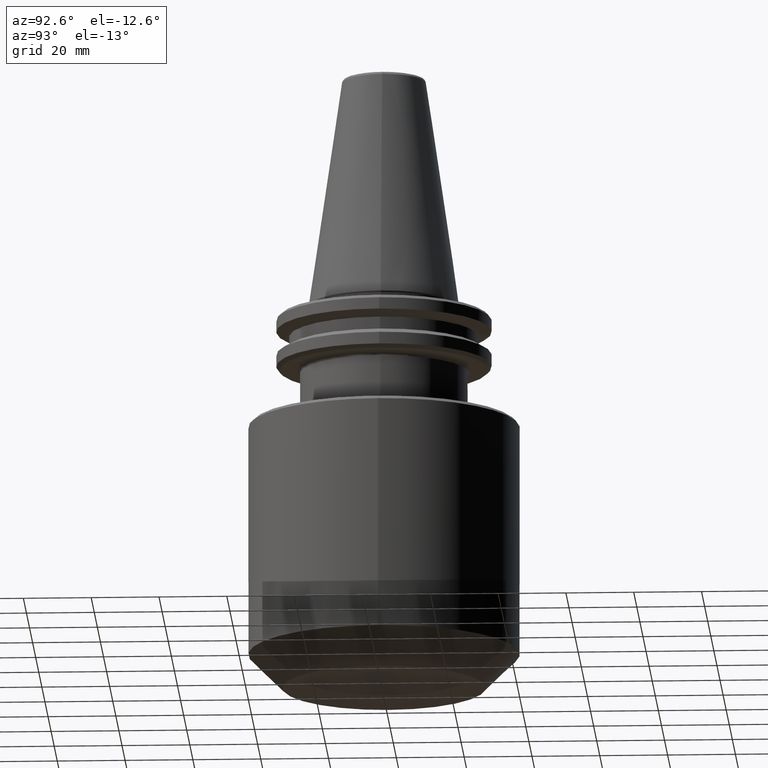
[diagram: clean part render]
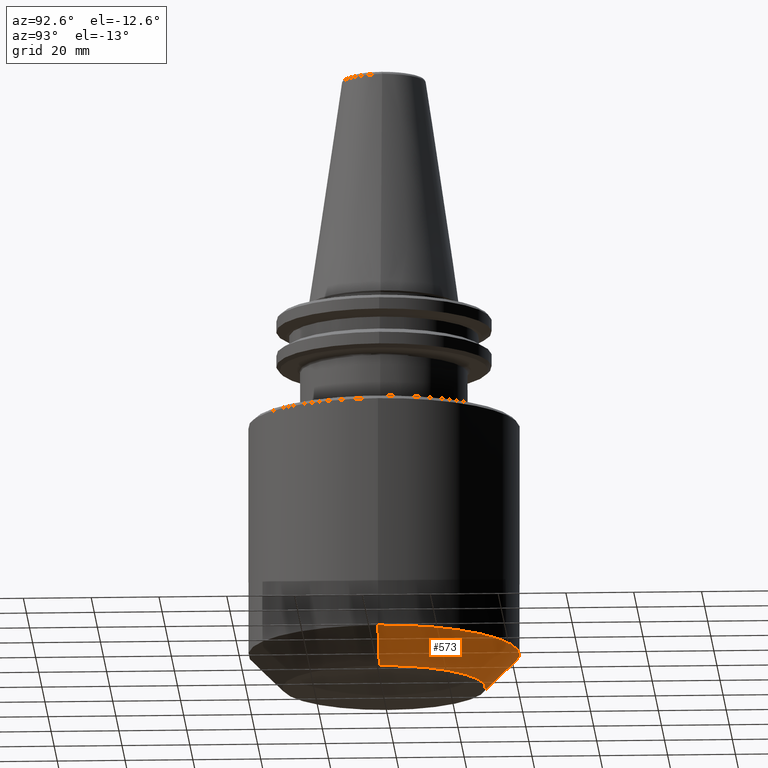
[diagram: same view with one face highlighted and labeled with its STEP entity id]
A machine part, auxiliary view. The second image highlights one B-rep face of the part: STEP entity #573.
In plain terms, the highlighted conical surface has half-angle 45 deg.
Its self-contained STEP definition (entity closure, byte-faithful):
#69 = CIRCLE ( 'NONE', #1209, 30.00000000000000000 ) ;
#96 = VERTEX_POINT ( 'NONE', #1008 ) ;
#121 = LINE ( 'NONE', #1268, #1273 ) ;
#229 = EDGE_CURVE ( 'NONE', #624, #96, #69, .T. ) ;
#435 = EDGE_CURVE ( 'NONE', #729, #631, #1249, .T. ) ;
#449 = CARTESIAN_POINT ( 'NONE',  ( 39.99999999999998600, 0.0000000000000000000, -104.9999999999999600 ) ) ;
#492 = CARTESIAN_POINT ( 'NONE',  ( 30.00000000000000000, 0.0000000000000000000, -115.0000000000000100 ) ) ;
#506 = CARTESIAN_POINT ( 'NONE',  ( -39.99999999999998600, 4.898587196589411400E-015, -104.9999999999999600 ) ) ;
#534 = DIRECTION ( 'NONE',  ( 1.000000000000000000, 0.0000000000000000000, 0.0000000000000000000 ) ) ;
#535 = CARTESIAN_POINT ( 'NONE',  ( 0.0000000000000000000, 0.0000000000000000000, -104.9999999999999600 ) ) ;
#546 = DIRECTION ( 'NONE',  ( 0.7071067811865448000, 0.0000000000000000000, 0.7071067811865502400 ) ) ;
#550 = DIRECTION ( 'NONE',  ( 0.0000000000000000000, -0.0000000000000000000, 1.000000000000000000 ) ) ;
#573 = ADVANCED_FACE ( 'NONE', ( #615 ), #1832, .T. ) ;
#593 = AXIS2_PLACEMENT_3D ( 'NONE', #535, #550, #534 ) ;
#615 = FACE_OUTER_BOUND ( 'NONE', #660, .T. ) ;
#619 = DIRECTION ( 'NONE',  ( 1.000000000000000000, 0.0000000000000000000, 0.0000000000000000000 ) ) ;
#620 = DIRECTION ( 'NONE',  ( 0.0000000000000000000, 0.0000000000000000000, 1.000000000000000000 ) ) ;
#622 = CARTESIAN_POINT ( 'NONE',  ( 0.0000000000000000000, 0.0000000000000000000, -104.9999999999999600 ) ) ;
#624 = VERTEX_POINT ( 'NONE', #492 ) ;
#631 = VERTEX_POINT ( 'NONE', #506 ) ;
#660 = EDGE_LOOP ( 'NONE', ( #1063, #1488, #1606, #1689 ) ) ;
#729 = VERTEX_POINT ( 'NONE', #449 ) ;
#939 = CARTESIAN_POINT ( 'NONE',  ( -39.99999999999998600, 4.898587196589411400E-015, -104.9999999999999600 ) ) ;
#1008 = CARTESIAN_POINT ( 'NONE',  ( -30.00000000000000000, 4.286263797015734900E-015, -115.0000000000000100 ) ) ;
#1063 = ORIENTED_EDGE ( 'NONE', *, *, #229, .T. ) ;
#1209 = AXIS2_PLACEMENT_3D ( 'NONE', #1698, #1433, #1312 ) ;
#1230 = AXIS2_PLACEMENT_3D ( 'NONE', #622, #620, #619 ) ;
#1249 = CIRCLE ( 'NONE', #1230, 39.99999999999999300 ) ;
#1268 = CARTESIAN_POINT ( 'NONE',  ( 39.99999999999998600, 0.0000000000000000000, -104.9999999999999600 ) ) ;
#1273 = VECTOR ( 'NONE', #546, 1000.000000000000000 ) ;
#1287 = DIRECTION ( 'NONE',  ( -0.7071067811865448000, 8.659560562354899600E-017, 0.7071067811865502400 ) ) ;
#1312 = DIRECTION ( 'NONE',  ( 1.000000000000000000, 0.0000000000000000000, 0.0000000000000000000 ) ) ;
#1433 = DIRECTION ( 'NONE',  ( 0.0000000000000000000, -0.0000000000000000000, 1.000000000000000000 ) ) ;
#1488 = ORIENTED_EDGE ( 'NONE', *, *, #1786, .T. ) ;
#1606 = ORIENTED_EDGE ( 'NONE', *, *, #435, .F. ) ;
#1641 = VECTOR ( 'NONE', #1287, 1000.000000000000000 ) ;
#1684 = LINE ( 'NONE', #939, #1641 ) ;
#1689 = ORIENTED_EDGE ( 'NONE', *, *, #1811, .F. ) ;
#1698 = CARTESIAN_POINT ( 'NONE',  ( 0.0000000000000000000, 0.0000000000000000000, -115.0000000000000100 ) ) ;
#1786 = EDGE_CURVE ( 'NONE', #96, #631, #1684, .T. ) ;
#1811 = EDGE_CURVE ( 'NONE', #624, #729, #121, .T. ) ;
#1832 = CONICAL_SURFACE ( 'NONE', #593, 39.99999999999998600, 0.7853981633974445000 ) ;